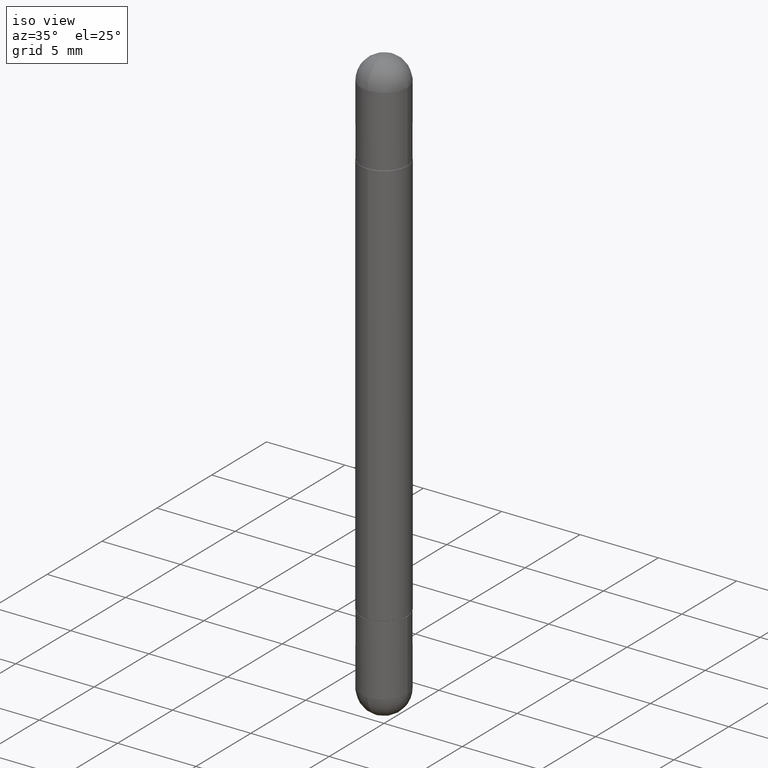
[diagram: clean part render]
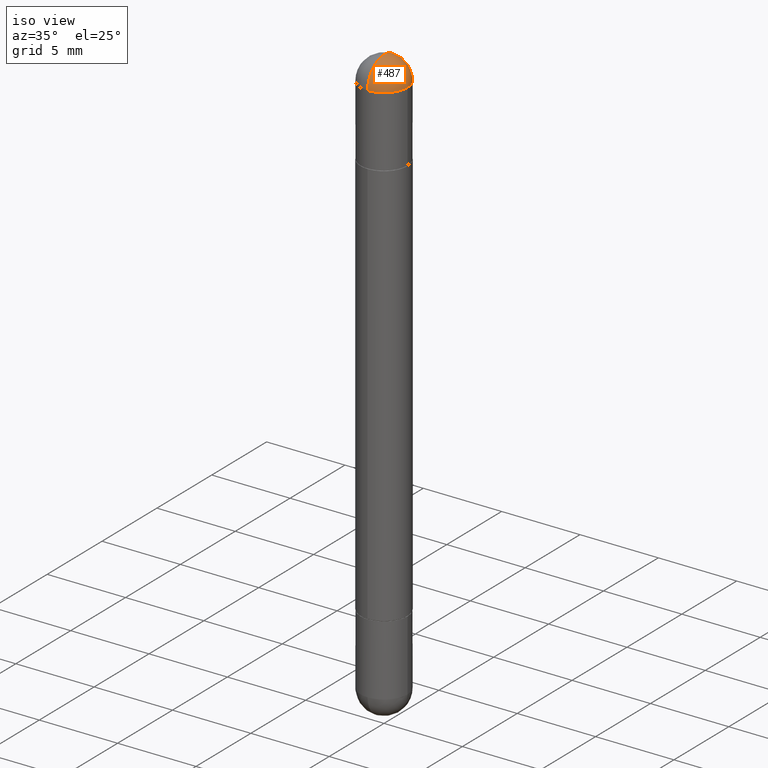
[diagram: same view with one face highlighted and labeled with its STEP entity id]
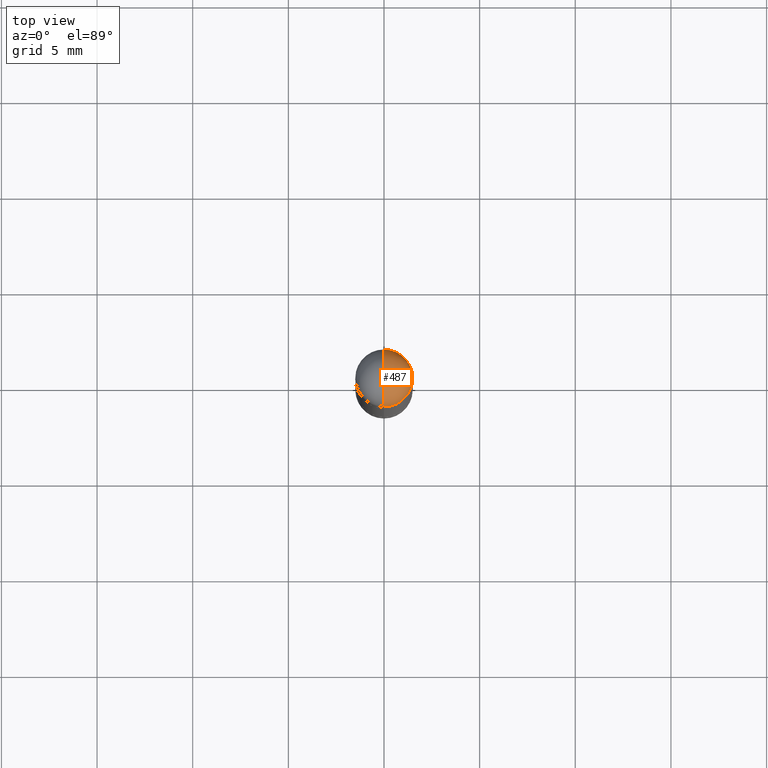
[diagram: same view with one face highlighted and labeled with its STEP entity id]
A machine part, iso view. The second image highlights one B-rep face of the part: STEP entity #487.
A second angle (top view) of the same face is appended — the face is thin or edge-on in the first view.
In plain terms, the highlighted spherical surface has radius 1.4999 mm.
Its self-contained STEP definition (entity closure, byte-faithful):
#20 = EDGE_CURVE ( 'NONE', #92, #427, #290, .T. ) ;
#67 = CARTESIAN_POINT ( 'NONE',  ( 0.05905000000000001914, -5.120519244513884944E-15, -0.05905000000000028976 ) ) ;
#68 = EDGE_CURVE ( 'NONE', #785, #313, #157, .T. ) ;
#77 = DIRECTION ( 'NONE',  ( -1.000000000000000000, 6.982962677686265922E-15, 4.883557194083112340E-29 ) ) ;
#92 = VERTEX_POINT ( 'NONE', #67 ) ;
#98 = DIRECTION ( 'NONE',  ( 1.000000000000000000, -6.982962677686265922E-15, -4.883557194083112340E-29 ) ) ;
#131 = AXIS2_PLACEMENT_3D ( 'NONE', #634, #145, #774 ) ;
#145 = DIRECTION ( 'NONE',  ( 2.445468806185136597E-29, -3.491481338843145583E-15, 1.000000000000000000 ) ) ;
#149 = FACE_OUTER_BOUND ( 'NONE', #623, .T. ) ;
#157 = CIRCLE ( 'NONE', #464, 0.05905000000000025506 ) ;
#175 = DIRECTION ( 'NONE',  ( 1.000000000000000000, -6.860497997771530774E-15, -4.840798879624142912E-29 ) ) ;
#227 = SPHERICAL_SURFACE ( 'NONE', #691, 0.05905000000000025506 ) ;
#237 = EDGE_CURVE ( 'NONE', #313, #92, #367, .T. ) ;
#239 = CARTESIAN_POINT ( 'NONE',  ( 4.123439461174084467E-16, 0.05904999999999487742, -0.05905000000000008159 ) ) ;
#272 = CIRCLE ( 'NONE', #292, 0.05905000000000025506 ) ;
#290 = CIRCLE ( 'NONE', #131, 0.05905000000000001914 ) ;
#291 = DIRECTION ( 'NONE',  ( 2.445468806185136597E-29, -3.491481338843145583E-15, 1.000000000000000000 ) ) ;
#292 = AXIS2_PLACEMENT_3D ( 'NONE', #636, #77, #324 ) ;
#313 = VERTEX_POINT ( 'NONE', #387 ) ;
#323 = EDGE_CURVE ( 'NONE', #785, #427, #272, .T. ) ;
#324 = DIRECTION ( 'NONE',  ( -6.982962677686266711E-15, -1.000000000000000000, 0.000000000000000000 ) ) ;
#367 = CIRCLE ( 'NONE', #466, 0.05905000000000001914 ) ;
#387 = CARTESIAN_POINT ( 'NONE',  ( -4.051124067683763770E-16, -0.05905000000000539678, -0.05905000000000049099 ) ) ;
#413 = DIRECTION ( 'NONE',  ( 6.860497997771530774E-15, 1.000000000000000000, 0.000000000000000000 ) ) ;
#427 = VERTEX_POINT ( 'NONE', #239 ) ;
#464 = AXIS2_PLACEMENT_3D ( 'NONE', #744, #175, #413 ) ;
#466 = AXIS2_PLACEMENT_3D ( 'NONE', #728, #291, #721 ) ;
#474 = CARTESIAN_POINT ( 'NONE',  ( 3.330070981488499955E-29, -5.694171829508798064E-15, -3.414809992080329023E-17 ) ) ;
#487 = ADVANCED_FACE ( 'NONE', ( #149 ), #227, .T. ) ;
#543 = ORIENTED_EDGE ( 'NONE', *, *, #68, .T. ) ;
#581 = ORIENTED_EDGE ( 'NONE', *, *, #20, .T. ) ;
#588 = CARTESIAN_POINT ( 'NONE',  ( 3.183141170014464762E-29, -5.491615626124592102E-15, -0.05905000000000028976 ) ) ;
#601 = DIRECTION ( 'NONE',  ( 6.982962677686265922E-15, 1.000000000000000000, 3.469747663417762014E-15 ) ) ;
#613 = ORIENTED_EDGE ( 'NONE', *, *, #237, .T. ) ;
#623 = EDGE_LOOP ( 'NONE', ( #752, #543, #613, #581 ) ) ;
#634 = CARTESIAN_POINT ( 'NONE',  ( 3.514260947928350449E-29, -5.017433257984542594E-15, -0.05905000000000028976 ) ) ;
#636 = CARTESIAN_POINT ( 'NONE',  ( 3.183141170014464762E-29, -5.491615626124592102E-15, -0.05905000000000028976 ) ) ;
#691 = AXIS2_PLACEMENT_3D ( 'NONE', #588, #98, #601 ) ;
#721 = DIRECTION ( 'NONE',  ( 1.000000000000000000, -6.982962677686270655E-15, 0.000000000000000000 ) ) ;
#728 = CARTESIAN_POINT ( 'NONE',  ( 3.514260947928350449E-29, -5.017433257984542594E-15, -0.05905000000000028976 ) ) ;
#744 = CARTESIAN_POINT ( 'NONE',  ( 3.183141170014464762E-29, -5.491615626124592102E-15, -0.05905000000000028976 ) ) ;
#752 = ORIENTED_EDGE ( 'NONE', *, *, #323, .F. ) ;
#774 = DIRECTION ( 'NONE',  ( 1.000000000000000000, -6.982962677686270655E-15, 0.000000000000000000 ) ) ;
#785 = VERTEX_POINT ( 'NONE', #474 ) ;